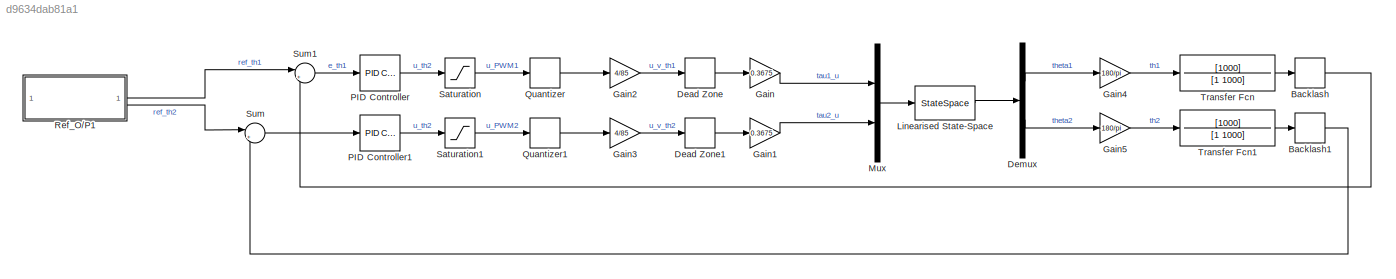
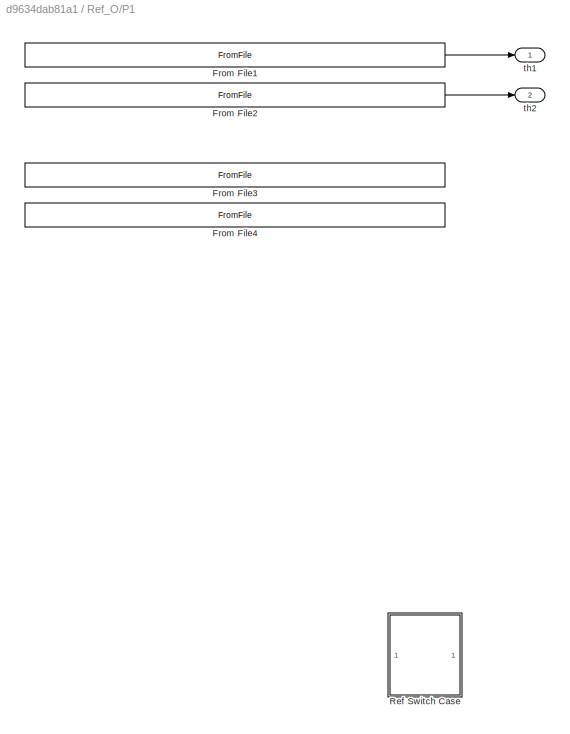
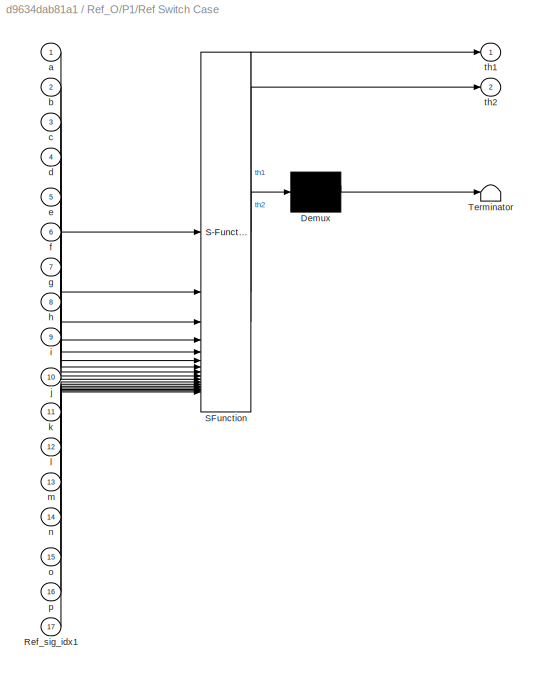
MODEL slx_d9634dab81a1
KIND model
CONFIG AbsTol = auto
CONFIG EnableMultiTasking = off
CONFIG FixedStep = auto
CONFIG MaxStep = auto
CONFIG MinStep = auto
CONFIG RelTol = 1e-3
CONFIG SampleTimeConstraint = Unconstrained
CONFIG SolverName = VariableStepAuto
CONFIG StartTime = 0.0
CONFIG StopTime = 2
BLOCK [Backlash] Backlash
  BacklashWidth = 3
BLOCK [Backlash] Backlash1
  BacklashWidth = 3
  Commented = through
BLOCK [DeadZone] Dead Zone
  LowerValue = -2.1
  UpperValue = 2.1
BLOCK [DeadZone] Dead Zone1
  LowerValue = -2.1
  UpperValue = 2.1
BLOCK [Demux] Demux
  Outputs = 2
BLOCK [Gain] Gain
  Gain = 0.3675
BLOCK [Gain] Gain1
  Gain = 0.3675
BLOCK [Gain] Gain2
  Gain = 4/85
BLOCK [Gain] Gain3
  Gain = 4/85
BLOCK [Gain] Gain4
  Gain = 180/pi
BLOCK [Gain] Gain5
  Gain = 180/pi
BLOCK [StateSpace] Linearised State-Space
  A = A
  B = B
  C = [1 0 0 0; 0 1 0 0]
  D = [0 0; 0 0]
  InitialCondition = 0
BLOCK [Mux] Mux
  DisplayOption = bar
  Inputs = 2
BLOCK [Reference] PID Controller  REF=slpidlib/PID Controller
  LibrarySourceBlock = simulink/Continuous/PID Controller
  SourceBlock = slpidlib/PID Controller
  SourceType = PID 1dof
BLOCK [Reference] PID Controller1  REF=slpidlib/PID Controller
  LibrarySourceBlock = simulink/Continuous/PID Controller
  SourceBlock = slpidlib/PID Controller
  SourceType = PID 1dof
BLOCK [Quantizer] Quantizer
  QuantizationInterval = 1
BLOCK [Quantizer] Quantizer1
  QuantizationInterval = 1
BLOCK [SubSystem] Ref_O//P1
BLOCK [FromFile] Ref_O//P1/From File1
  FileName = <userpath>\Documents\Arduino\MVNLC\control\Uni2024_MVNLC\Simulink_Simulation\ref_source\2s\ref_circ_th1.mat
  SampleTime = 0
BLOCK [FromFile] Ref_O//P1/From File2
  FileName = <userpath>\Documents\Arduino\MVNLC\control\Uni2024_MVNLC\Simulink_Simulation\ref_source\2s\ref_circ_th2.mat
  SampleTime = 0
BLOCK [FromFile] Ref_O//P1/From File3
  FileName = <userpath>\Documents\Arduino\MVNLC\control\Uni2024_MVNLC\Simulink_Simulation\ref_source\2s\ref_sq_th1.mat
  SampleTime = 0
BLOCK [FromFile] Ref_O//P1/From File4
  FileName = <userpath>\Documents\Arduino\MVNLC\control\Uni2024_MVNLC\Simulink_Simulation\ref_source\2s\ref_sq_th2.mat
  SampleTime = 0
BLOCK [SubSystem] Ref_O//P1/Ref Switch Case
  Commented = on
  ErrorFcn = Stateflow.Translate.translate
  PermitHierarchicalResolution = ExplicitOnly
  SFBlockType = MATLAB Function
  TreatAsAtomicUnit = on
BLOCK [Demux] Ref_O//P1/Ref Switch Case/ Demux 
  Outputs = 1
BLOCK [S-Function] Ref_O//P1/Ref Switch Case/ SFunction 
  EnableBusSupport = on
  FunctionName = sf_sfun
  Parameters = Ref_sig_idx
  PortCounts = [17 3]
  SFcnIsStateOwnerBlock = off
  SFunctionDeploymentMode = off
  Tag = Stateflow S-Function 4
BLOCK [Terminator] Ref_O//P1/Ref Switch Case/ Terminator 
BLOCK [Inport] Ref_O//P1/Ref Switch Case/Ref_sig_idx1
  Port = 17
BLOCK [Inport] Ref_O//P1/Ref Switch Case/a
BLOCK [Inport] Ref_O//P1/Ref Switch Case/b
  Port = 2
BLOCK [Inport] Ref_O//P1/Ref Switch Case/c
  Port = 3
BLOCK [Inport] Ref_O//P1/Ref Switch Case/d
  Port = 4
BLOCK [Inport] Ref_O//P1/Ref Switch Case/e
  Port = 5
BLOCK [Inport] Ref_O//P1/Ref Switch Case/f
  Port = 6
BLOCK [Inport] Ref_O//P1/Ref Switch Case/g
  Port = 7
BLOCK [Inport] Ref_O//P1/Ref Switch Case/h
  Port = 8
BLOCK [Inport] Ref_O//P1/Ref Switch Case/i
  Port = 9
BLOCK [Inport] Ref_O//P1/Ref Switch Case/j
  Port = 10
BLOCK [Inport] Ref_O//P1/Ref Switch Case/k
  Port = 11
BLOCK [Inport] Ref_O//P1/Ref Switch Case/l
  Port = 12
BLOCK [Inport] Ref_O//P1/Ref Switch Case/m
  Port = 13
BLOCK [Inport] Ref_O//P1/Ref Switch Case/n
  Port = 14
BLOCK [Inport] Ref_O//P1/Ref Switch Case/o
  Port = 15
BLOCK [Inport] Ref_O//P1/Ref Switch Case/p
  Port = 16
BLOCK [Outport] Ref_O//P1/Ref Switch Case/th1
BLOCK [Outport] Ref_O//P1/Ref Switch Case/th2
  Port = 2
BLOCK [Outport] Ref_O//P1/th1
BLOCK [Outport] Ref_O//P1/th2
  Port = 2
BLOCK [Saturate] Saturation
  LowerLimit = -255
  UpperLimit = 255
BLOCK [Saturate] Saturation1
  LowerLimit = -255
  UpperLimit = 255
BLOCK [Sum] Sum
  Inputs = |+-
BLOCK [Sum] Sum1
  Inputs = |+-
BLOCK [TransferFcn] Transfer Fcn
  Commented = through
  Denominator = [1 1000]
  Numerator = [1000]
BLOCK [TransferFcn] Transfer Fcn1
  Commented = through
  Denominator = [1 1000]
  Numerator = [1000]
LINE Backlash1:1 -> Sum:2
LINE Backlash:1 -> Sum1:2
LINE Dead Zone1:1 -> Gain1:1
LINE Dead Zone:1 -> Gain:1
LINE Demux:1 -> Gain4:1
LINE Demux:2 -> Gain5:1
LINE Gain1:1 -> Mux:2
LINE Gain2:1 -> Dead Zone:1
LINE Gain3:1 -> Dead Zone1:1
LINE Gain4:1 -> Transfer Fcn:1
LINE Gain5:1 -> Transfer Fcn1:1
LINE Gain:1 -> Mux:1
LINE Linearised State-Space:1 -> Demux:1
LINE Mux:1 -> Linearised State-Space:1
LINE PID Controller1:1 -> Saturation1:1
LINE PID Controller:1 -> Saturation:1
LINE Quantizer1:1 -> Gain3:1
LINE Quantizer:1 -> Gain2:1
LINE Ref_O//P1/From File1:1 -> Ref_O//P1/th1:1
LINE Ref_O//P1/From File2:1 -> Ref_O//P1/th2:1
LINE Ref_O//P1:1 -> Sum1:1
LINE Ref_O//P1:2 -> Sum:1
LINE Saturation1:1 -> Quantizer1:1
LINE Saturation:1 -> Quantizer:1
LINE Sum1:1 -> PID Controller:1
LINE Sum:1 -> PID Controller1:1
LINE Transfer Fcn1:1 -> Backlash1:1
LINE Transfer Fcn:1 -> Backlash:1
CHART Ref_O//P1/Ref Switch Case states=1 transitions=1
  STATE_LABEL 'eML_blk_kernel()'
  STATE_LABEL 'SCRIPT:\nfunction [th1, th2] = ref_switch(Ref_sig_idx, a, b, c, d, e, f, g, h, i, j, k, l, m, n, o, p, Ref_sig_idx1)\n    if Ref_sig_idx == 0\n        % circ base\n        th1 = a;\n        th2 = b;\n    elseif Ref_sig_idx == 1\n        % sq base\n        th1 = c;\n        th2 = d;\n    elseif Ref_sig_idx == 2\n        % tri base\n        th1 = e;\n        th2 = f;\n    end\n    if Ref_sig_idx == 3\n        % cir...<+531ch>'
CHART  states=0 transitions=0
